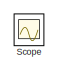
[diagram: root canvas - part 1/2, top left region]
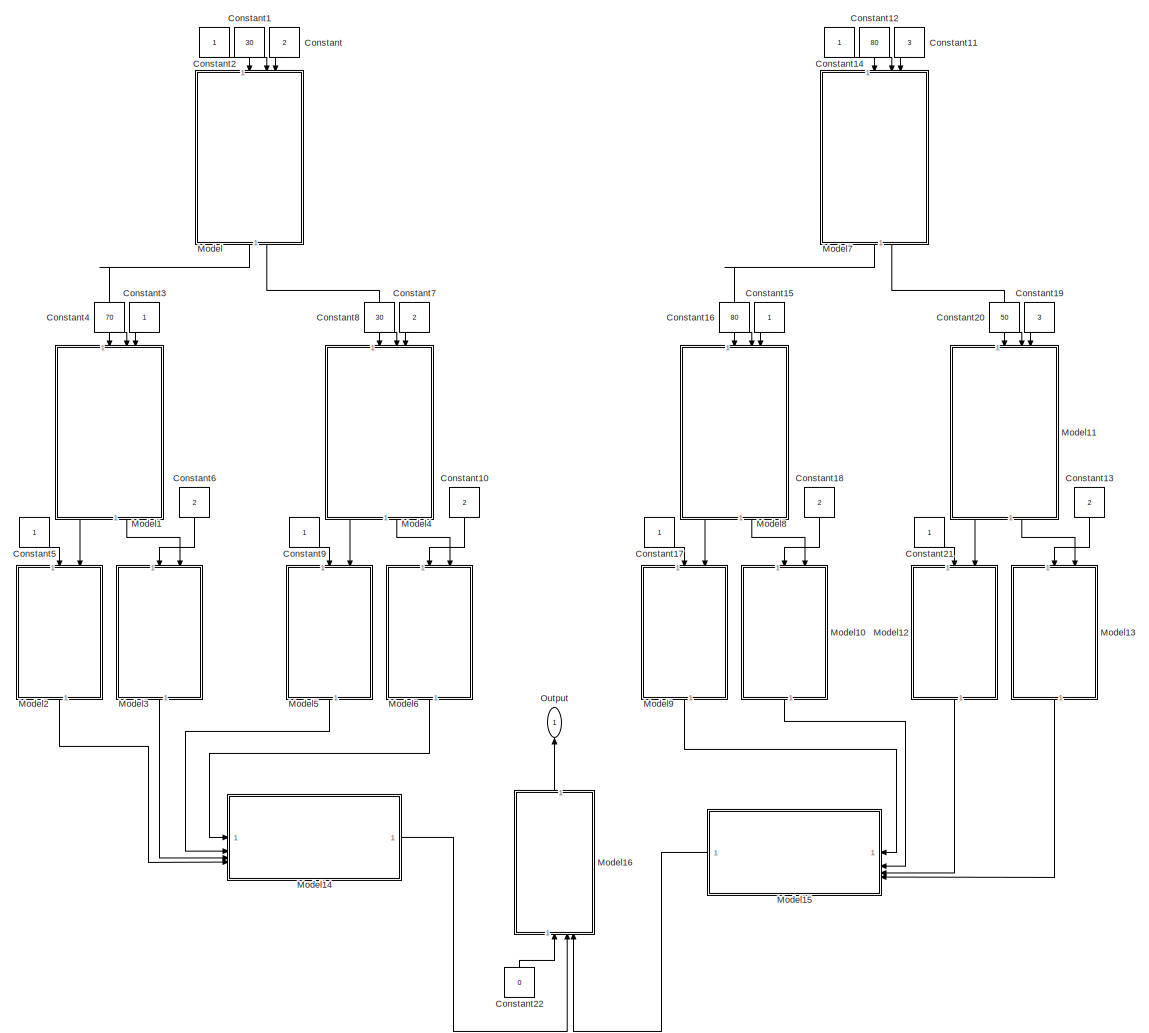
[diagram: root canvas - part 2/2, most of the canvas]
MODEL slx_9f08435f229e
KIND model
CONFIG AbsTol = auto
CONFIG EnableMultiTasking = off
CONFIG FixedStep = auto
CONFIG MaxStep = auto
CONFIG MinStep = auto
CONFIG RelTol = 1e-3
CONFIG SampleTimeConstraint = Unconstrained
CONFIG SolverName = VariableStepAuto
CONFIG StartTime = 0.0
CONFIG StopTime = 10.0
BLOCK [Constant] Constant
  NameLocation = left
  Value = 2
BLOCK [Constant] Constant1
  NameLocation = left
  Value = 30
BLOCK [Constant] Constant10
  NameLocation = left
  Value = 2
BLOCK [Constant] Constant11
  NameLocation = left
  Value = 3
BLOCK [Constant] Constant12
  NameLocation = left
  Value = 80
BLOCK [Constant] Constant13
  NameLocation = left
  Value = 2
BLOCK [Constant] Constant14
  NameLocation = left
BLOCK [Constant] Constant15
  NameLocation = left
BLOCK [Constant] Constant16
  NameLocation = left
  Value = 80
BLOCK [Constant] Constant17
  NameLocation = left
BLOCK [Constant] Constant18
  NameLocation = left
  Value = 2
BLOCK [Constant] Constant19
  NameLocation = left
  Value = 3
BLOCK [Constant] Constant2
  NameLocation = left
BLOCK [Constant] Constant20
  NameLocation = left
  Value = 50
BLOCK [Constant] Constant21
  NameLocation = left
BLOCK [Constant] Constant22
  NameLocation = right
  Value = 0
BLOCK [Constant] Constant3
  NameLocation = left
BLOCK [Constant] Constant4
  NameLocation = left
  Value = 70
BLOCK [Constant] Constant5
  NameLocation = left
BLOCK [Constant] Constant6
  NameLocation = left
  Value = 2
BLOCK [Constant] Constant7
  NameLocation = left
  Value = 2
BLOCK [Constant] Constant8
  NameLocation = left
  Value = 30
BLOCK [Constant] Constant9
  NameLocation = left
BLOCK [ModelReference] Model
  ModelNameDialog = Case2WithTime.slx
  ModelReferenceVersion = 1.10
  NameLocation = left
BLOCK [ModelReference] Model1
  ModelNameDialog = Case2WithTime.slx
  ModelReferenceVersion = 1.10
  NameLocation = left
BLOCK [ModelReference] Model10
  ModelNameDialog = UpdateTimeModel.slx
  ModelReferenceVersion = 3.5
  NameLocation = left
BLOCK [ModelReference] Model11
  ModelNameDialog = Case2WithTime.slx
  ModelReferenceVersion = 1.10
  NameLocation = left
BLOCK [ModelReference] Model12
  ModelNameDialog = UpdateTimeModel.slx
  ModelReferenceVersion = 3.5
  NameLocation = left
BLOCK [ModelReference] Model13
  ModelNameDialog = UpdateTimeModel.slx
  ModelReferenceVersion = 3.5
  NameLocation = left
BLOCK [ModelReference] Model14
  ModelNameDialog = Mux4.slx
  ModelReferenceVersion = 1.5
BLOCK [ModelReference] Model15
  ModelNameDialog = Mux4.slx
  ModelReferenceVersion = 1.5
  NameLocation = top
BLOCK [ModelReference] Model16
  ModelNameDialog = Split2.slx
  ModelReferenceVersion = 1.8
  NameLocation = right
BLOCK [ModelReference] Model2
  ModelNameDialog = UpdateTimeModel.slx
  ModelReferenceVersion = 3.5
  NameLocation = left
BLOCK [ModelReference] Model3
  ModelNameDialog = UpdateTimeModel.slx
  ModelReferenceVersion = 3.5
  NameLocation = left
BLOCK [ModelReference] Model4
  ModelNameDialog = Case2WithTime.slx
  ModelReferenceVersion = 1.10
  NameLocation = left
BLOCK [ModelReference] Model5
  ModelNameDialog = UpdateTimeModel.slx
  ModelReferenceVersion = 3.5
  NameLocation = left
BLOCK [ModelReference] Model6
  ModelNameDialog = UpdateTimeModel.slx
  ModelReferenceVersion = 3.5
  NameLocation = left
BLOCK [ModelReference] Model7
  ModelNameDialog = Case2WithTime.slx
  ModelReferenceVersion = 1.10
  NameLocation = left
BLOCK [ModelReference] Model8
  ModelNameDialog = Case2WithTime.slx
  ModelReferenceVersion = 1.10
  NameLocation = left
BLOCK [ModelReference] Model9
  ModelNameDialog = UpdateTimeModel.slx
  ModelReferenceVersion = 3.5
  NameLocation = left
BLOCK [Outport] Output
  NameLocation = right
BLOCK [Scope] Scope
  Floating = off
  IOType = viewer
  NumInputPorts = 1
  ScopeSpecificationString = Simulink.scopes.TimeScopeBlockCfg('CurrentConfiguration', extmgr.ConfigurationSet(extmgr.Configuration('Core','General UI',true),extmgr.Configuration('Core','Source UI',true),extmgr.Configuration('Sources','WiredSimulink',true),extmgr.Configuration('Visuals','Time Domain',true,'SerializedDisplays',{struct('MinYLimReal','4.75','MaxYLimReal','7.25','YLabelReal','','MinYLimMag','4.75','MaxYLimMag','7...<+1327ch>
LINE Constant10:1 -> Model6:1
LINE Constant11:1 -> Model7:3
LINE Constant12:1 -> Model7:2
LINE Constant13:1 -> Model13:1
LINE Constant14:1 -> Model7:1
LINE Constant15:1 -> Model8:3
LINE Constant16:1 -> Model8:2
LINE Constant17:1 -> Model9:1
LINE Constant18:1 -> Model10:1
LINE Constant19:1 -> Model11:3
LINE Constant1:1 -> Model:2
LINE Constant20:1 -> Model11:2
LINE Constant21:1 -> Model12:1
LINE Constant22:1 -> Model16:1
LINE Constant2:1 -> Model:1
LINE Constant3:1 -> Model1:3
LINE Constant4:1 -> Model1:2
LINE Constant5:1 -> Model2:1
LINE Constant6:1 -> Model3:1
LINE Constant7:1 -> Model4:3
LINE Constant8:1 -> Model4:2
LINE Constant9:1 -> Model5:1
LINE Constant:1 -> Model:3
LINE Model10:1 -> Model15:2
LINE Model11:1 -> Model12:3
LINE Model11:2 -> Model13:3
LINE Model12:1 -> Model15:3
LINE Model13:1 -> Model15:4
LINE Model14:1 -> Model16:2
LINE Model15:1 -> Model16:3
LINE Model16:1 -> Output:1
LINE Model1:1 -> Model2:3
LINE Model1:2 -> Model3:3
LINE Model2:1 -> Model14:4
LINE Model3:1 -> Model14:3
LINE Model4:1 -> Model5:3
LINE Model4:2 -> Model6:3
LINE Model5:1 -> Model14:2
LINE Model6:1 -> Model14:1
LINE Model7:1 -> Model8:1
LINE Model7:2 -> Model11:1
LINE Model8:1 -> Model9:3
LINE Model8:2 -> Model10:3
LINE Model9:1 -> Model15:1
LINE Model:1 -> Model1:1
LINE Model:2 -> Model4:1
